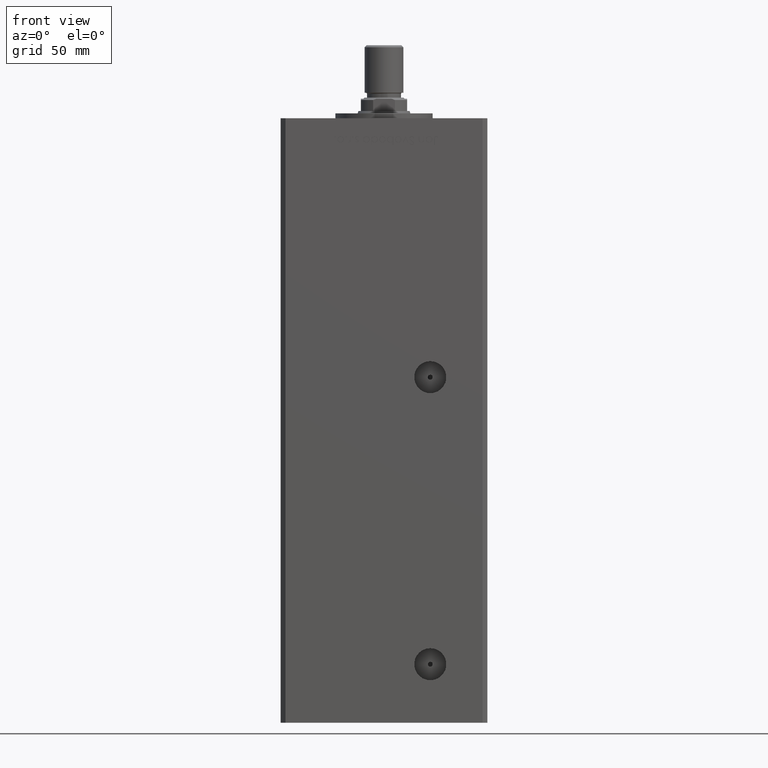
[diagram: clean part render]
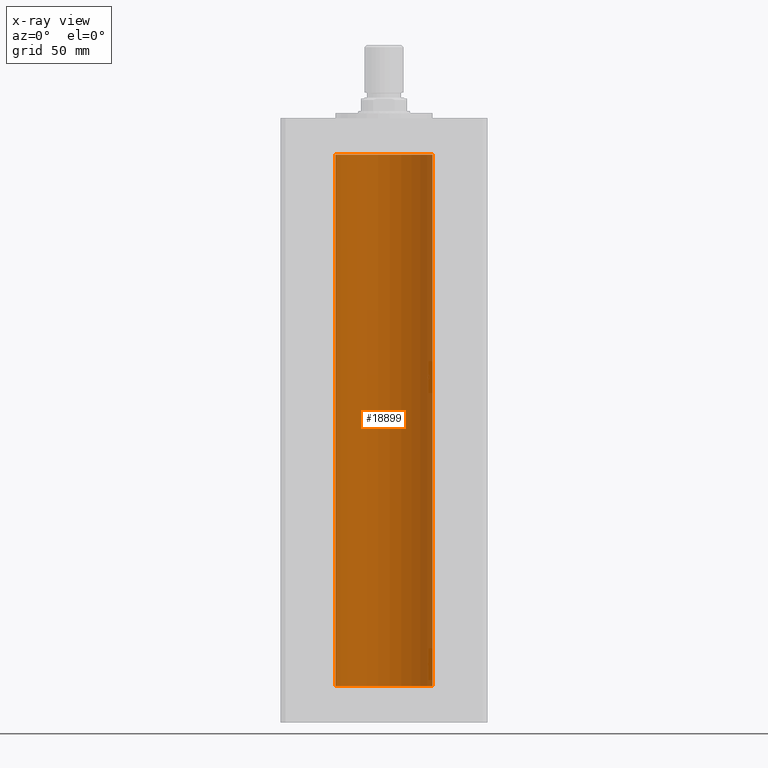
[diagram: x-ray — body ghosted, one internal face saturated and labeled with its STEP entity id]
A machine part, front view, then the same camera in x-ray: the body is ghosted and one INTERNAL B-rep face — a face not visible from any outside direction — is saturated and labeled: STEP entity #18899.
In plain terms, the highlighted cylindrical surface (partial cylindrical patch) has radius 20 mm, axis along (-0, -0, -1).
Its self-contained STEP definition (entity closure, byte-faithful):
#2484 = CARTESIAN_POINT ( 'NONE',  ( -20.00000000000000000, 0.000000000000000000, 218.5000000000000000 ) ) ;
#3230 = CYLINDRICAL_SURFACE ( 'NONE', #27014, 20.00000000000000000 ) ;
#4229 = AXIS2_PLACEMENT_3D ( 'NONE', #19219, #11014, #38561 ) ;
#4529 = ORIENTED_EDGE ( 'NONE', *, *, #21304, .T. ) ;
#4599 = VECTOR ( 'NONE', #34292, 1000.000000000000000 ) ;
#8769 = CARTESIAN_POINT ( 'NONE',  ( 0.000000000000000000, 0.000000000000000000, 218.5000000000000000 ) ) ;
#8877 = EDGE_CURVE ( 'NONE', #35370, #40385, #51007, .T. ) ;
#10368 = EDGE_LOOP ( 'NONE', ( #39365, #4529, #48795, #41590 ) ) ;
#10732 = DIRECTION ( 'NONE',  ( -0.000000000000000000, -0.000000000000000000, -1.000000000000000000 ) ) ;
#11014 = DIRECTION ( 'NONE',  ( -0.000000000000000000, 0.000000000000000000, 1.000000000000000000 ) ) ;
#13377 = LINE ( 'NONE', #18124, #4599 ) ;
#16452 = DIRECTION ( 'NONE',  ( -1.000000000000000000, 0.000000000000000000, 0.000000000000000000 ) ) ;
#18124 = CARTESIAN_POINT ( 'NONE',  ( 20.00000000000000000, 2.449293598294706513E-15, 218.5000000000000000 ) ) ;
#18899 = ADVANCED_FACE ( 'NONE', ( #23381 ), #3230, .F. ) ;
#19219 = CARTESIAN_POINT ( 'NONE',  ( 0.000000000000000000, 0.000000000000000000, 218.5000000000000000 ) ) ;
#19813 = CIRCLE ( 'NONE', #32470, 20.00000000000000000 ) ;
#20844 = VERTEX_POINT ( 'NONE', #31596 ) ;
#21304 = EDGE_CURVE ( 'NONE', #20844, #35370, #34716, .T. ) ;
#22509 = VECTOR ( 'NONE', #10732, 1000.000000000000000 ) ;
#23381 = FACE_OUTER_BOUND ( 'NONE', #10368, .T. ) ;
#24496 = DIRECTION ( 'NONE',  ( -0.000000000000000000, 0.000000000000000000, 1.000000000000000000 ) ) ;
#27014 = AXIS2_PLACEMENT_3D ( 'NONE', #8769, #40829, #16452 ) ;
#28468 = CARTESIAN_POINT ( 'NONE',  ( 0.000000000000000000, 0.000000000000000000, 0.000000000000000000 ) ) ;
#31596 = CARTESIAN_POINT ( 'NONE',  ( 20.00000000000000000, 2.449293598294706513E-15, 218.5000000000000000 ) ) ;
#32470 = AXIS2_PLACEMENT_3D ( 'NONE', #28468, #24496, #36148 ) ;
#34292 = DIRECTION ( 'NONE',  ( -0.000000000000000000, -0.000000000000000000, -1.000000000000000000 ) ) ;
#34716 = CIRCLE ( 'NONE', #4229, 20.00000000000000000 ) ;
#35370 = VERTEX_POINT ( 'NONE', #2484 ) ;
#36093 = VERTEX_POINT ( 'NONE', #37498 ) ;
#36148 = DIRECTION ( 'NONE',  ( 1.000000000000000000, 0.000000000000000000, 0.000000000000000000 ) ) ;
#36730 = CARTESIAN_POINT ( 'NONE',  ( -20.00000000000000000, 0.000000000000000000, 0.000000000000000000 ) ) ;
#37498 = CARTESIAN_POINT ( 'NONE',  ( 20.00000000000000000, 2.449293598294706513E-15, 0.000000000000000000 ) ) ;
#38561 = DIRECTION ( 'NONE',  ( 1.000000000000000000, 0.000000000000000000, 0.000000000000000000 ) ) ;
#38655 = EDGE_CURVE ( 'NONE', #20844, #36093, #13377, .T. ) ;
#39365 = ORIENTED_EDGE ( 'NONE', *, *, #38655, .F. ) ;
#40385 = VERTEX_POINT ( 'NONE', #36730 ) ;
#40829 = DIRECTION ( 'NONE',  ( -0.000000000000000000, -0.000000000000000000, -1.000000000000000000 ) ) ;
#41419 = EDGE_CURVE ( 'NONE', #36093, #40385, #19813, .T. ) ;
#41590 = ORIENTED_EDGE ( 'NONE', *, *, #41419, .F. ) ;
#47032 = CARTESIAN_POINT ( 'NONE',  ( -20.00000000000000000, 0.000000000000000000, 218.5000000000000000 ) ) ;
#48795 = ORIENTED_EDGE ( 'NONE', *, *, #8877, .T. ) ;
#51007 = LINE ( 'NONE', #47032, #22509 ) ;